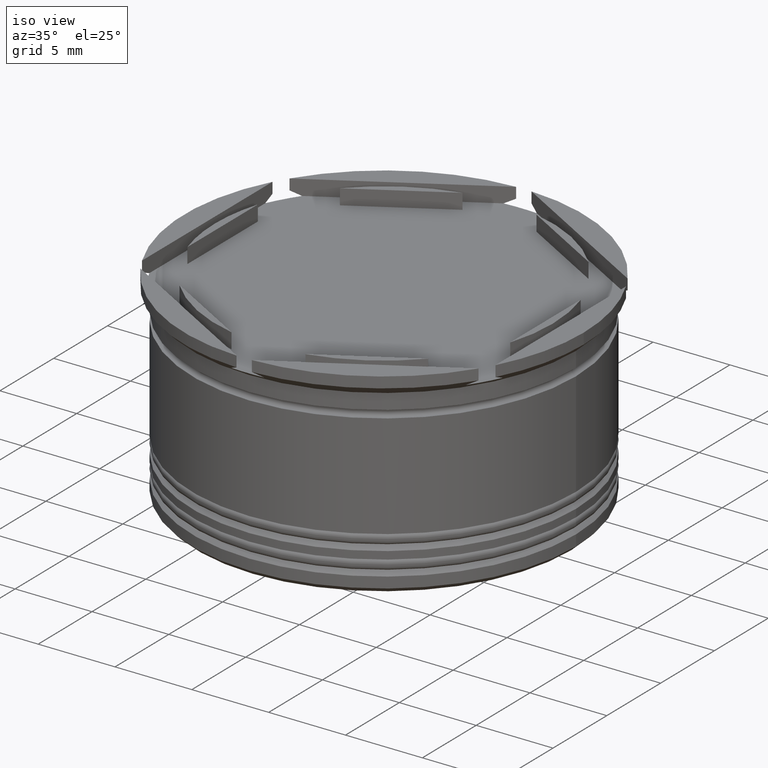
[diagram: clean part render]
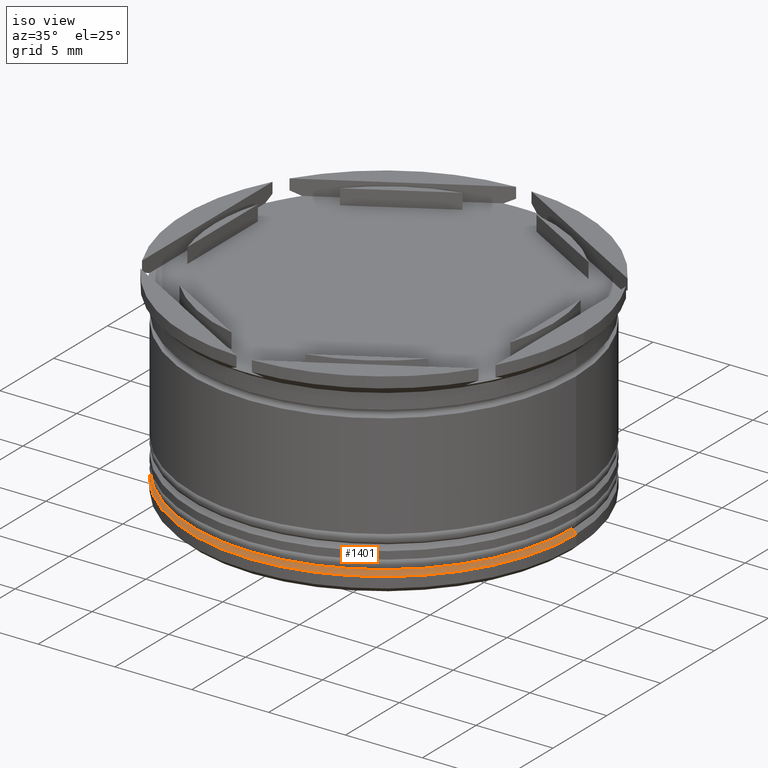
[diagram: same view with one face highlighted and labeled with its STEP entity id]
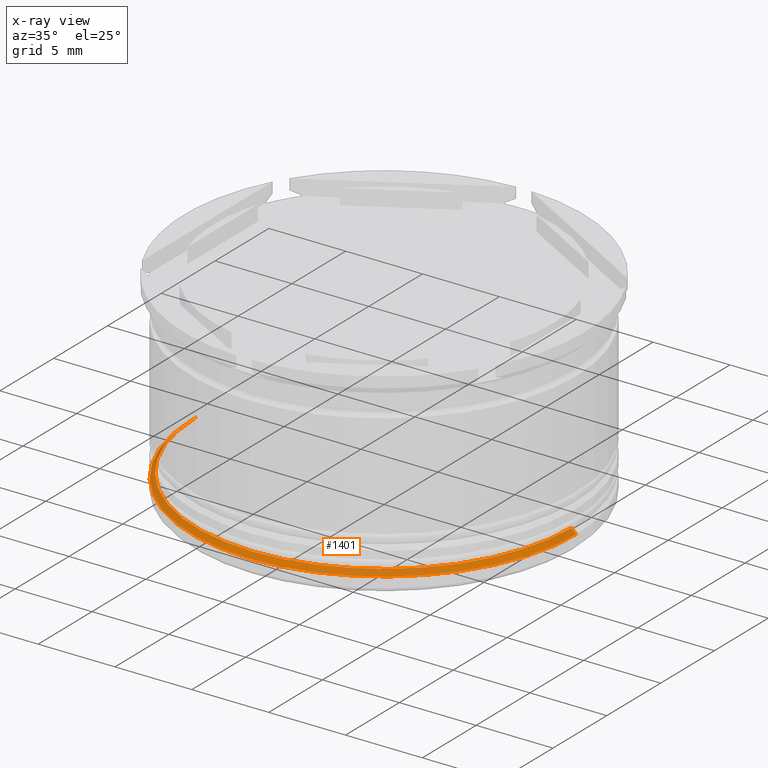
[diagram: x-ray of the same camera — body ghosted, the highlighted face saturated]
A machine part, iso view. The second image highlights one B-rep face of the part: STEP entity #1401.
The next image is the same camera in x-ray: the body ghosted, the highlighted face saturated — about 2% of this face is hidden behind the body in this view.
In plain terms, the highlighted conical surface has half-angle 45 deg.
Its self-contained STEP definition (entity closure, byte-faithful):
#85 = EDGE_CURVE ( 'NONE', #1417, #1375, #732, .T. ) ;
#142 = ORIENTED_EDGE ( 'NONE', *, *, #1906, .F. ) ;
#434 = VECTOR ( 'NONE', #748, 1000.000000000000000 ) ;
#479 = DIRECTION ( 'NONE',  ( -1.000000000000000000, 0.000000000000000000, 0.000000000000000000 ) ) ;
#496 = DIRECTION ( 'NONE',  ( -1.000000000000000000, 0.000000000000000000, 0.000000000000000000 ) ) ;
#577 = EDGE_CURVE ( 'NONE', #1422, #867, #759, .T. ) ;
#631 = CIRCLE ( 'NONE', #1947, 12.19999999999999929 ) ;
#634 = FACE_OUTER_BOUND ( 'NONE', #2096, .T. ) ;
#641 = CARTESIAN_POINT ( 'NONE',  ( 12.19999999999999929, 0.000000000000000000, -11.70000000000000639 ) ) ;
#654 = DIRECTION ( 'NONE',  ( -1.000000000000000000, 0.000000000000000000, 0.000000000000000000 ) ) ;
#665 = AXIS2_PLACEMENT_3D ( 'NONE', #1171, #830, #479 ) ;
#705 = DIRECTION ( 'NONE',  ( 0.7071067811865512365, 8.659560562354978464E-17, -0.7071067811865439090 ) ) ;
#732 = LINE ( 'NONE', #1297, #434 ) ;
#748 = DIRECTION ( 'NONE',  ( -0.7071067811865512365, 0.000000000000000000, -0.7071067811865439090 ) ) ;
#759 = LINE ( 'NONE', #1111, #1748 ) ;
#828 = EDGE_CURVE ( 'NONE', #1417, #1422, #631, .T. ) ;
#830 = DIRECTION ( 'NONE',  ( 0.000000000000000000, 0.000000000000000000, -1.000000000000000000 ) ) ;
#838 = DIRECTION ( 'NONE',  ( -0.000000000000000000, -0.000000000000000000, 1.000000000000000000 ) ) ;
#867 = VERTEX_POINT ( 'NONE', #1389 ) ;
#988 = CARTESIAN_POINT ( 'NONE',  ( -12.19999999999999929, 1.494069094959770859E-15, -11.70000000000000639 ) ) ;
#1111 = CARTESIAN_POINT ( 'NONE',  ( 11.99999999999999112, 1.469576158976822961E-15, -11.50000000000000000 ) ) ;
#1171 = CARTESIAN_POINT ( 'NONE',  ( 0.000000000000000000, 0.000000000000000000, -11.50000000000000000 ) ) ;
#1297 = CARTESIAN_POINT ( 'NONE',  ( -11.99999999999999112, 0.000000000000000000, -11.50000000000000000 ) ) ;
#1375 = VERTEX_POINT ( 'NONE', #1390 ) ;
#1389 = CARTESIAN_POINT ( 'NONE',  ( 12.50000000000000000, 0.000000000000000000, -12.00000000000000355 ) ) ;
#1390 = CARTESIAN_POINT ( 'NONE',  ( -12.50000000000000000, 1.530808498934191521E-15, -12.00000000000000355 ) ) ;
#1395 = CONICAL_SURFACE ( 'NONE', #665, 11.99999999999999112, 0.7853981633974533860 ) ;
#1401 = ADVANCED_FACE ( 'NONE', ( #634 ), #1395, .T. ) ;
#1407 = CARTESIAN_POINT ( 'NONE',  ( 0.000000000000000000, 0.000000000000000000, -11.70000000000000639 ) ) ;
#1417 = VERTEX_POINT ( 'NONE', #988 ) ;
#1422 = VERTEX_POINT ( 'NONE', #641 ) ;
#1432 = ORIENTED_EDGE ( 'NONE', *, *, #828, .F. ) ;
#1495 = ORIENTED_EDGE ( 'NONE', *, *, #577, .F. ) ;
#1625 = DIRECTION ( 'NONE',  ( 0.000000000000000000, 0.000000000000000000, -1.000000000000000000 ) ) ;
#1748 = VECTOR ( 'NONE', #705, 1000.000000000000000 ) ;
#1903 = CIRCLE ( 'NONE', #2248, 12.50000000000000000 ) ;
#1906 = EDGE_CURVE ( 'NONE', #867, #1375, #1903, .T. ) ;
#1947 = AXIS2_PLACEMENT_3D ( 'NONE', #1407, #838, #654 ) ;
#1990 = CARTESIAN_POINT ( 'NONE',  ( 0.000000000000000000, 0.000000000000000000, -12.00000000000000355 ) ) ;
#2096 = EDGE_LOOP ( 'NONE', ( #1495, #1432, #2123, #142 ) ) ;
#2123 = ORIENTED_EDGE ( 'NONE', *, *, #85, .T. ) ;
#2248 = AXIS2_PLACEMENT_3D ( 'NONE', #1990, #1625, #496 ) ;